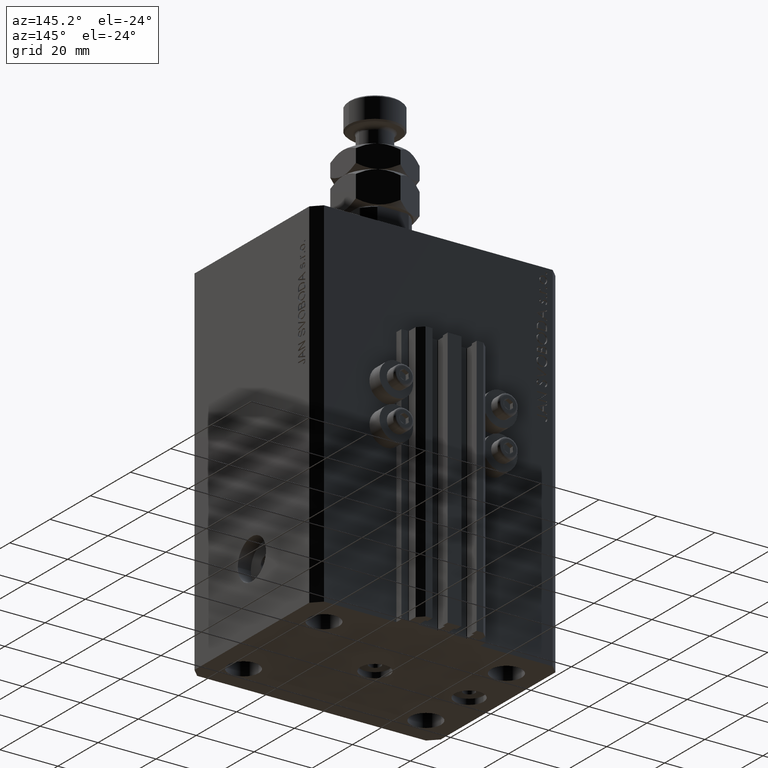
[diagram: clean part render]
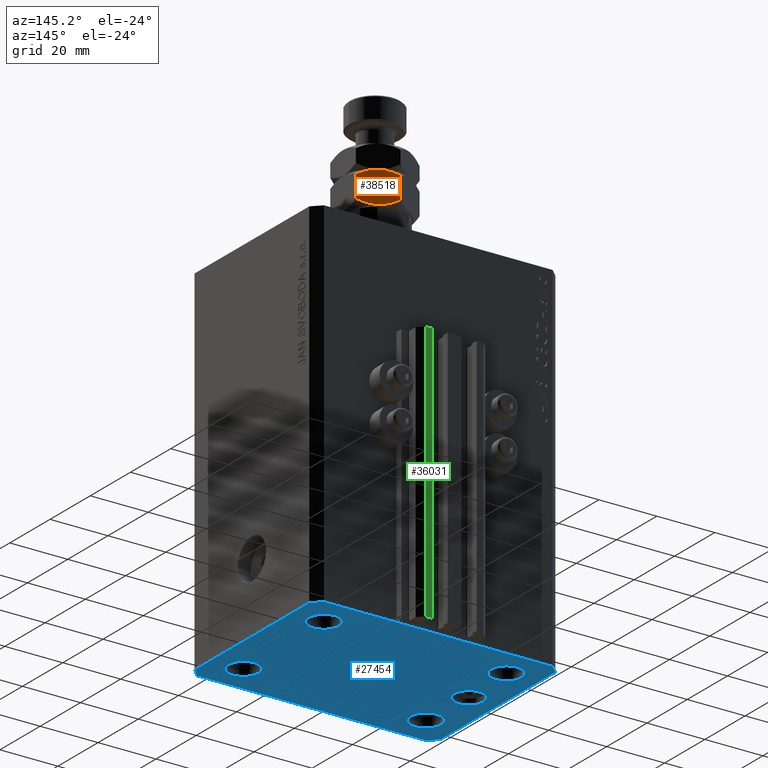
[diagram: same view with three faces highlighted in distinct colors, each labeled with its STEP entity id]
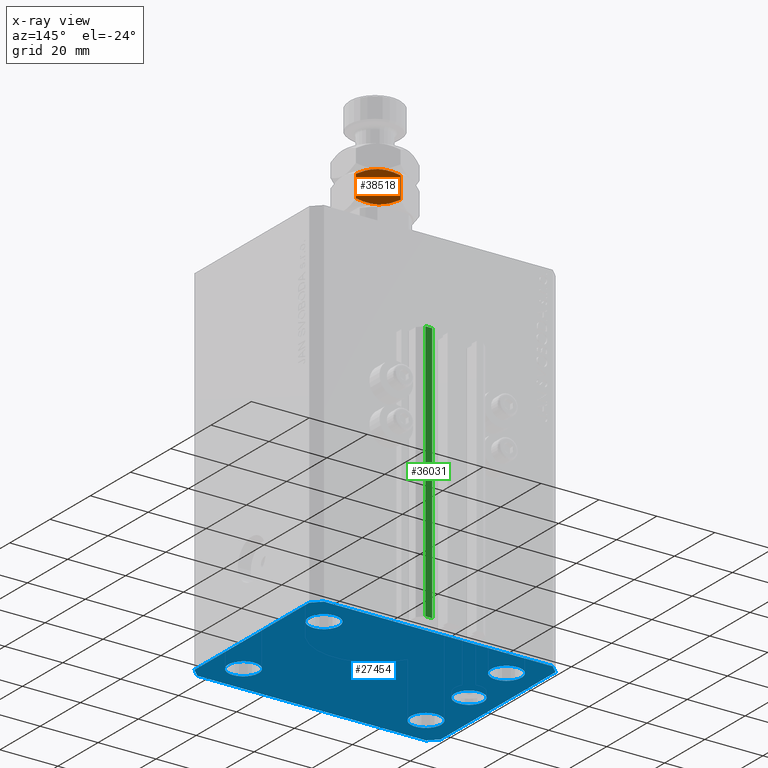
[diagram: x-ray of the same camera — body ghosted, the three highlighted faces saturated]
A machine part, auxiliary view with three faces highlighted in distinct colors.
The next image is the same camera in x-ray (body ghosted, the three faces saturated) — at least one of them is partly hidden behind the body in this view.
Their STEP definitions:

[orange] entity #38518 — the highlighted planar face has unit normal (-0.5, -0.866, 0).
#659 = DIRECTION ( 'NONE',  ( -0.000000000000000000, -0.000000000000000000, -1.000000000000000000 ) ) ;
#4475 = CARTESIAN_POINT ( 'NONE',  ( 7.884967580346613936, 8.149317767107177701, 10.67178078790959717 ) ) ;
#4561 = EDGE_CURVE ( 'NONE', #41747, #34154, #22808, .T. ) ;
#4966 = CARTESIAN_POINT ( 'NONE',  ( 6.470625887979895019, 8.965888323921213043, 10.95634070256487824 ) ) ;
#5756 = LINE ( 'NONE', #9965, #40472 ) ;
#5987 = DIRECTION ( 'NONE',  ( -0.000000000000000000, -0.000000000000000000, -1.000000000000000000 ) ) ;
#6408 = CARTESIAN_POINT ( 'NONE',  ( 11.00000000000000000, 6.350852961085883486, 9.298294077828240134 ) ) ;
#6427 = CARTESIAN_POINT ( 'NONE',  ( 5.499999999999999112, 9.526279441628826561, 0.000000000000000000 ) ) ;
#6844 = CARTESIAN_POINT ( 'NONE',  ( 5.499999999999999112, 9.526279441628826561, 0.000000000000000000 ) ) ;
#7356 = CARTESIAN_POINT ( 'NONE',  ( 11.00000000000000000, 6.350852961085883486, 1.701705922171761198 ) ) ;
#8689 = CARTESIAN_POINT ( 'NONE',  ( 7.420105971005182433, 8.417705742396377033, 10.79187792513293154 ) ) ;
#9397 = PLANE ( 'NONE',  #12714 ) ;
#9965 = CARTESIAN_POINT ( 'NONE',  ( 11.00000000000000000, 6.350852961085883486, 11.00000000000000000 ) ) ;
#10100 = ORIENTED_EDGE ( 'NONE', *, *, #45185, .T. ) ;
#10112 = ORIENTED_EDGE ( 'NONE', *, *, #14779, .F. ) ;
#10156 = B_SPLINE_CURVE_WITH_KNOTS ( 'NONE', 3,
 ( #20081, #12400, #20320, #4475, #8689, #4966, #12168, #23793 ),
 .UNSPECIFIED., .F., .F.,
 ( 4, 2, 2, 4 ),
 ( 2.544311317614349830E-07, 0.003291871675740032106, 0.004937680298044164716, 0.006583488920348298627 ),
 .UNSPECIFIED. ) ;
#10562 = ORIENTED_EDGE ( 'NONE', *, *, #4561, .F. ) ;
#11064 = CARTESIAN_POINT ( 'NONE',  ( 6.456670474420574735, 8.973945485696338764, -1.192622389734053694E-15 ) ) ;
#11422 = EDGE_LOOP ( 'NONE', ( #21593, #39842, #10562, #18718, #10100, #10112 ) ) ;
#12101 = CARTESIAN_POINT ( 'NONE',  ( 1.748214531935807559, 11.69237379155741152, 10.22231519547797518 ) ) ;
#12168 = CARTESIAN_POINT ( 'NONE',  ( 5.981709287746640236, 9.248164454677155533, 11.00000000000000000 ) ) ;
#12400 = CARTESIAN_POINT ( 'NONE',  ( 10.13752086928278295, 6.848805519375901874, 9.796246636118256745 ) ) ;
#12714 = AXIS2_PLACEMENT_3D ( 'NONE', #34505, #39862, #17051 ) ;
#14275 = CARTESIAN_POINT ( 'NONE',  ( 7.397073880711847238, 8.431003325927232339, 0.1689086083647579339 ) ) ;
#14779 = EDGE_CURVE ( 'NONE', #17540, #24611, #39261, .T. ) ;
#17051 = DIRECTION ( 'NONE',  ( 0.8660254037844387076, -0.4999999999999998890, 0.000000000000000000 ) ) ;
#17070 = CARTESIAN_POINT ( 'NONE',  ( 3.579894028994819788, 10.63485314086127431, 0.2081220748670722098 ) ) ;
#17316 = CARTESIAN_POINT ( 'NONE',  ( 1.744478007639208350, 11.69453107486588195, 0.7806233875467714078 ) ) ;
#17433 = CARTESIAN_POINT ( 'NONE',  ( 9.006588997586899406E-16, 12.70170592217176342, 1.701705922171758312 ) ) ;
#17540 = VERTEX_POINT ( 'NONE', #25797 ) ;
#17896 = VERTEX_POINT ( 'NONE', #6408 ) ;
#18718 = ORIENTED_EDGE ( 'NONE', *, *, #25507, .F. ) ;
#18973 = CARTESIAN_POINT ( 'NONE',  ( 10.13851939750335696, 6.848229018838962290, 1.204329864418605567 ) ) ;
#20081 = CARTESIAN_POINT ( 'NONE',  ( 11.00000000000000000, 6.350852961085883486, 9.298294077828240134 ) ) ;
#20320 = CARTESIAN_POINT ( 'NONE',  ( 9.255521992360790762, 7.358027808391762292, 10.21937661245322460 ) ) ;
#21294 = CARTESIAN_POINT ( 'NONE',  ( 5.018290712253357100, 9.804394428580492260, -1.345088320239828938E-15 ) ) ;
#21593 = ORIENTED_EDGE ( 'NONE', *, *, #24442, .F. ) ;
#22808 = B_SPLINE_CURVE_WITH_KNOTS ( 'NONE', 3,
 ( #43291, #42545, #23721, #12101, #34893, #27203 ),
 .UNSPECIFIED., .F., .F.,
 ( 4, 2, 4 ),
 ( 0.006583488920348298627, 0.009852050593448711396, 0.01312061226654912156 ),
 .UNSPECIFIED. ) ;
#23721 = CARTESIAN_POINT ( 'NONE',  ( 3.602926119288152318, 10.62155555733041901, 10.83109139163524581 ) ) ;
#23793 = CARTESIAN_POINT ( 'NONE',  ( 5.499999999999998224, 9.526279441628819455, 11.00000000000000000 ) ) ;
#24442 = EDGE_CURVE ( 'NONE', #44867, #17540, #40957, .T. ) ;
#24611 = VERTEX_POINT ( 'NONE', #33696 ) ;
#25256 = CARTESIAN_POINT ( 'NONE',  ( 4.529374112020105869, 10.08667055933643830, 0.04365929743512447087 ) ) ;
#25507 = EDGE_CURVE ( 'NONE', #17896, #41747, #10156, .T. ) ;
#25797 = CARTESIAN_POINT ( 'NONE',  ( 5.499999999999999112, 9.526279441628826561, 0.000000000000000000 ) ) ;
#26177 = CARTESIAN_POINT ( 'NONE',  ( 9.251785468064189999, 7.360185091700237159, 0.7776848045220270400 ) ) ;
#27065 = FACE_OUTER_BOUND ( 'NONE', #11422, .T. ) ;
#27203 = CARTESIAN_POINT ( 'NONE',  ( -4.327962126576701651E-16, 12.70170592217176342, 9.298294077828241910 ) ) ;
#27419 = CARTESIAN_POINT ( 'NONE',  ( 0.000000000000000000, 12.70170592217176342, 11.00000000000000000 ) ) ;
#28278 = CARTESIAN_POINT ( 'NONE',  ( -4.327962126576701651E-16, 12.70170592217176342, 9.298294077828241910 ) ) ;
#28492 = CARTESIAN_POINT ( 'NONE',  ( 0.8624791307172143817, 12.20375336388174503, 1.203753363881742811 ) ) ;
#33696 = CARTESIAN_POINT ( 'NONE',  ( 11.00000000000000000, 6.350852961085883486, 1.701705922171761198 ) ) ;
#34154 = VERTEX_POINT ( 'NONE', #28278 ) ;
#34505 = CARTESIAN_POINT ( 'NONE',  ( 11.00000000000000000, 6.350852961085883486, 11.00000000000000000 ) ) ;
#34668 = EDGE_CURVE ( 'NONE', #34154, #44867, #42524, .T. ) ;
#34893 = CARTESIAN_POINT ( 'NONE',  ( 0.8614806024966432663, 12.20432986441868728, 9.795670135581396210 ) ) ;
#35942 = CARTESIAN_POINT ( 'NONE',  ( 3.115032419653387397, 10.90324111615047364, 0.3282192120904029453 ) ) ;
#38518 = ADVANCED_FACE ( 'NONE', ( #27065 ), #9397, .F. ) ;
#39261 = B_SPLINE_CURVE_WITH_KNOTS ( 'NONE', 3,
 ( #6844, #11064, #14275, #26177, #18973, #7356 ),
 .UNSPECIFIED., .F., .F.,
 ( 4, 2, 4 ),
 ( 0.006583488920348296025, 0.009852050593448707927, 0.01312061226654912330 ),
 .UNSPECIFIED. ) ;
#39389 = CARTESIAN_POINT ( 'NONE',  ( 9.006588997586899406E-16, 12.70170592217176342, 1.701705922171758312 ) ) ;
#39842 = ORIENTED_EDGE ( 'NONE', *, *, #34668, .F. ) ;
#39862 = DIRECTION ( 'NONE',  ( -0.4999999999999998890, -0.8660254037844387076, 0.000000000000000000 ) ) ;
#40472 = VECTOR ( 'NONE', #5987, 1000.000000000000000 ) ;
#40957 = B_SPLINE_CURVE_WITH_KNOTS ( 'NONE', 3,
 ( #39389, #28492, #17316, #35942, #17070, #25256, #21294, #6427 ),
 .UNSPECIFIED., .F., .F.,
 ( 4, 2, 2, 4 ),
 ( 2.544311317623912303E-07, 0.003291871675740029504, 0.004937680298044162114, 0.006583488920348296025 ),
 .UNSPECIFIED. ) ;
#41747 = VERTEX_POINT ( 'NONE', #46822 ) ;
#42524 = LINE ( 'NONE', #27419, #45777 ) ;
#42545 = CARTESIAN_POINT ( 'NONE',  ( 4.543329525579426154, 10.07861339756131080, 11.00000000000000000 ) ) ;
#43291 = CARTESIAN_POINT ( 'NONE',  ( 5.499999999999998224, 9.526279441628819455, 11.00000000000000000 ) ) ;
#44867 = VERTEX_POINT ( 'NONE', #17433 ) ;
#45185 = EDGE_CURVE ( 'NONE', #17896, #24611, #5756, .T. ) ;
#45777 = VECTOR ( 'NONE', #659, 1000.000000000000000 ) ;
#46822 = CARTESIAN_POINT ( 'NONE',  ( 5.499999999999998224, 9.526279441628819455, 11.00000000000000000 ) ) ;

[blue] entity #27454 — the highlighted planar face has unit normal (0, 0, 1).
#539 = EDGE_CURVE ( 'NONE', #33734, #5957, #21861, .T. ) ;
#709 = CARTESIAN_POINT ( 'NONE',  ( -5.000000000000000000, 0.000000000000000000, -123.0000000000000000 ) ) ;
#834 = ORIENTED_EDGE ( 'NONE', *, *, #8948, .F. ) ;
#1358 = EDGE_CURVE ( 'NONE', #43691, #28724, #20327, .T. ) ;
#1410 = EDGE_CURVE ( 'NONE', #14986, #15946, #34752, .T. ) ;
#1440 = CARTESIAN_POINT ( 'NONE',  ( 42.50000000000051870, 28.49999999999995381, -123.0000000000000000 ) ) ;
#1778 = CARTESIAN_POINT ( 'NONE',  ( 31.50000000000000000, 19.99999999999999289, -123.0000000000000000 ) ) ;
#1968 = DIRECTION ( 'NONE',  ( -0.000000000000000000, -0.000000000000000000, -1.000000000000000000 ) ) ;
#2054 = VERTEX_POINT ( 'NONE', #37348 ) ;
#2195 = FACE_BOUND ( 'NONE', #6155, .T. ) ;
#2229 = VERTEX_POINT ( 'NONE', #43942 ) ;
#2331 = DIRECTION ( 'NONE',  ( -0.000000000000000000, -0.000000000000000000, -1.000000000000000000 ) ) ;
#2415 = VECTOR ( 'NONE', #4391, 1000.000000000000000 ) ;
#2852 = CARTESIAN_POINT ( 'NONE',  ( -39.50000000000000711, 31.50000000000000000, -123.0000000000000000 ) ) ;
#2895 = EDGE_LOOP ( 'NONE', ( #36712, #18232 ) ) ;
#3909 = LINE ( 'NONE', #18556, #2415 ) ;
#4390 = CARTESIAN_POINT ( 'NONE',  ( 26.25000000000000355, 19.99999999999999289, -123.0000000000000000 ) ) ;
#4391 = DIRECTION ( 'NONE',  ( 1.000000000000000000, 0.000000000000000000, 0.000000000000000000 ) ) ;
#4588 = DIRECTION ( 'NONE',  ( 1.000000000000000000, 0.000000000000000000, 0.000000000000000000 ) ) ;
#4880 = AXIS2_PLACEMENT_3D ( 'NONE', #38730, #35032, #9011 ) ;
#5095 = DIRECTION ( 'NONE',  ( 0.7071067811865483499, 0.7071067811865466846, 0.000000000000000000 ) ) ;
#5268 = CARTESIAN_POINT ( 'NONE',  ( -39.50000000000000711, 31.50000000000000000, -123.0000000000000000 ) ) ;
#5538 = ORIENTED_EDGE ( 'NONE', *, *, #12921, .F. ) ;
#5656 = VECTOR ( 'NONE', #5095, 1000.000000000000000 ) ;
#5682 = FACE_BOUND ( 'NONE', #26221, .T. ) ;
#5957 = VERTEX_POINT ( 'NONE', #46230 ) ;
#6017 = EDGE_CURVE ( 'NONE', #13953, #2054, #16496, .T. ) ;
#6147 = EDGE_LOOP ( 'NONE', ( #25072, #46629 ) ) ;
#6155 = EDGE_LOOP ( 'NONE', ( #14158, #15147 ) ) ;
#6487 = AXIS2_PLACEMENT_3D ( 'NONE', #28753, #1968, #42669 ) ;
#7426 = DIRECTION ( 'NONE',  ( -1.000000000000000000, 0.000000000000000000, 0.000000000000000000 ) ) ;
#7661 = DIRECTION ( 'NONE',  ( 0.000000000000000000, 0.000000000000000000, -1.000000000000000000 ) ) ;
#8948 = EDGE_CURVE ( 'NONE', #33057, #10484, #18864, .T. ) ;
#9011 = DIRECTION ( 'NONE',  ( 1.000000000000000000, 0.000000000000000000, 0.000000000000000000 ) ) ;
#9197 = AXIS2_PLACEMENT_3D ( 'NONE', #24563, #17859, #25050 ) ;
#9223 = EDGE_CURVE ( 'NONE', #12750, #37065, #31627, .T. ) ;
#9505 = EDGE_CURVE ( 'NONE', #2054, #13953, #38806, .T. ) ;
#9808 = DIRECTION ( 'NONE',  ( 1.000000000000000000, 0.000000000000000000, 0.000000000000000000 ) ) ;
#10484 = VERTEX_POINT ( 'NONE', #36799 ) ;
#10539 = CIRCLE ( 'NONE', #32685, 5.250000000000000888 ) ;
#10545 = EDGE_CURVE ( 'NONE', #2229, #25896, #43577, .T. ) ;
#10755 = CARTESIAN_POINT ( 'NONE',  ( -36.74999999999999289, -20.00000000000000355, -123.0000000000000000 ) ) ;
#11177 = AXIS2_PLACEMENT_3D ( 'NONE', #15739, #41771, #4588 ) ;
#11436 = DIRECTION ( 'NONE',  ( -1.000000000000000000, 0.000000000000000000, 0.000000000000000000 ) ) ;
#12206 = CARTESIAN_POINT ( 'NONE',  ( -42.50000000000000000, 28.50000000000000000, -123.0000000000000000 ) ) ;
#12463 = CARTESIAN_POINT ( 'NONE',  ( 36.74999999999999289, -20.00000000000000355, -123.0000000000000000 ) ) ;
#12480 = CARTESIAN_POINT ( 'NONE',  ( 42.50000000000000711, -28.50000000000000355, -123.0000000000000000 ) ) ;
#12750 = VERTEX_POINT ( 'NONE', #41782 ) ;
#12835 = CARTESIAN_POINT ( 'NONE',  ( -26.25000000000000000, 19.99999999999999645, -123.0000000000000000 ) ) ;
#12840 = CIRCLE ( 'NONE', #46862, 4.999999999999997335 ) ;
#12880 = CARTESIAN_POINT ( 'NONE',  ( -42.50000000000000000, 28.50000000000000000, -123.0000000000000000 ) ) ;
#12921 = EDGE_CURVE ( 'NONE', #31690, #33057, #23939, .T. ) ;
#13358 = DIRECTION ( 'NONE',  ( 1.000000000000000000, 0.000000000000000000, -0.000000000000000000 ) ) ;
#13574 = ORIENTED_EDGE ( 'NONE', *, *, #26942, .F. ) ;
#13953 = VERTEX_POINT ( 'NONE', #10755 ) ;
#14158 = ORIENTED_EDGE ( 'NONE', *, *, #22144, .F. ) ;
#14725 = DIRECTION ( 'NONE',  ( 1.000000000000000000, 0.000000000000000000, 0.000000000000000000 ) ) ;
#14986 = VERTEX_POINT ( 'NONE', #12880 ) ;
#15147 = ORIENTED_EDGE ( 'NONE', *, *, #23150, .F. ) ;
#15226 = VECTOR ( 'NONE', #11436, 1000.000000000000000 ) ;
#15739 = CARTESIAN_POINT ( 'NONE',  ( 31.50000000000000000, 19.99999999999999289, -123.0000000000000000 ) ) ;
#15946 = VERTEX_POINT ( 'NONE', #28468 ) ;
#15959 = VERTEX_POINT ( 'NONE', #36659 ) ;
#16253 = VERTEX_POINT ( 'NONE', #2852 ) ;
#16496 = CIRCLE ( 'NONE', #23658, 5.250000000000000888 ) ;
#16731 = ORIENTED_EDGE ( 'NONE', *, *, #38622, .F. ) ;
#17366 = EDGE_CURVE ( 'NONE', #15946, #15959, #40959, .T. ) ;
#17565 = PLANE ( 'NONE',  #25522 ) ;
#17702 = CARTESIAN_POINT ( 'NONE',  ( -31.50000000000000000, 19.99999999999999645, -123.0000000000000000 ) ) ;
#17859 = DIRECTION ( 'NONE',  ( 0.000000000000000000, 0.000000000000000000, -1.000000000000000000 ) ) ;
#18232 = ORIENTED_EDGE ( 'NONE', *, *, #10545, .F. ) ;
#18444 = EDGE_CURVE ( 'NONE', #5957, #33734, #12840, .T. ) ;
#18556 = CARTESIAN_POINT ( 'NONE',  ( -39.50000000000000711, -31.50000000000000000, -123.0000000000000000 ) ) ;
#18634 = CARTESIAN_POINT ( 'NONE',  ( -31.49999999999999289, -20.00000000000000355, -123.0000000000000000 ) ) ;
#18811 = CARTESIAN_POINT ( 'NONE',  ( 0.000000000000000000, 0.000000000000000000, -123.0000000000000000 ) ) ;
#18864 = LINE ( 'NONE', #19818, #44295 ) ;
#19347 = LINE ( 'NONE', #22346, #15226 ) ;
#19351 = DIRECTION ( 'NONE',  ( 8.886653596232072440E-15, 1.000000000000000000, 0.000000000000000000 ) ) ;
#19818 = CARTESIAN_POINT ( 'NONE',  ( 42.50000000000000711, -28.50000000000000355, -123.0000000000000000 ) ) ;
#19941 = CARTESIAN_POINT ( 'NONE',  ( -32.50000000000000000, 0.000000000000000000, -123.0000000000000000 ) ) ;
#20120 = DIRECTION ( 'NONE',  ( -0.000000000000000000, -0.000000000000000000, -1.000000000000000000 ) ) ;
#20327 = CIRCLE ( 'NONE', #26670, 5.249999999999997335 ) ;
#20529 = EDGE_LOOP ( 'NONE', ( #13574, #46201 ) ) ;
#20545 = EDGE_CURVE ( 'NONE', #28724, #43691, #30936, .T. ) ;
#20794 = DIRECTION ( 'NONE',  ( -0.7071067811865356934, 0.7071067811865594521, 0.000000000000000000 ) ) ;
#20806 = FACE_BOUND ( 'NONE', #2895, .T. ) ;
#21143 = CARTESIAN_POINT ( 'NONE',  ( 39.50000000000000711, -31.50000000000000000, -123.0000000000000000 ) ) ;
#21444 = DIRECTION ( 'NONE',  ( 0.000000000000000000, 0.000000000000000000, -1.000000000000000000 ) ) ;
#21786 = FACE_BOUND ( 'NONE', #6147, .T. ) ;
#21861 = CIRCLE ( 'NONE', #9197, 4.999999999999997335 ) ;
#22144 = EDGE_CURVE ( 'NONE', #24943, #48519, #33392, .T. ) ;
#22346 = CARTESIAN_POINT ( 'NONE',  ( 39.50000000000056843, 31.50000000000000000, -123.0000000000000000 ) ) ;
#22448 = ORIENTED_EDGE ( 'NONE', *, *, #27280, .F. ) ;
#23150 = EDGE_CURVE ( 'NONE', #48519, #24943, #35787, .T. ) ;
#23610 = LINE ( 'NONE', #5268, #27920 ) ;
#23658 = AXIS2_PLACEMENT_3D ( 'NONE', #24663, #39776, #9808 ) ;
#23939 = LINE ( 'NONE', #39054, #5656 ) ;
#24563 = CARTESIAN_POINT ( 'NONE',  ( -32.50000000000000000, 0.000000000000000000, -123.0000000000000000 ) ) ;
#24663 = CARTESIAN_POINT ( 'NONE',  ( -31.49999999999999289, -20.00000000000000355, -123.0000000000000000 ) ) ;
#24773 = EDGE_CURVE ( 'NONE', #25896, #2229, #10539, .T. ) ;
#24943 = VERTEX_POINT ( 'NONE', #12463 ) ;
#25036 = EDGE_CURVE ( 'NONE', #16253, #14986, #23610, .T. ) ;
#25050 = DIRECTION ( 'NONE',  ( -1.000000000000000000, 0.000000000000000000, 0.000000000000000000 ) ) ;
#25072 = ORIENTED_EDGE ( 'NONE', *, *, #539, .F. ) ;
#25522 = AXIS2_PLACEMENT_3D ( 'NONE', #35933, #40107, #13358 ) ;
#25896 = VERTEX_POINT ( 'NONE', #12835 ) ;
#26040 = ORIENTED_EDGE ( 'NONE', *, *, #20545, .F. ) ;
#26221 = EDGE_LOOP ( 'NONE', ( #26040, #48031 ) ) ;
#26326 = DIRECTION ( 'NONE',  ( 1.000000000000000000, 0.000000000000000000, 0.000000000000000000 ) ) ;
#26670 = AXIS2_PLACEMENT_3D ( 'NONE', #1778, #20120, #42185 ) ;
#26867 = EDGE_LOOP ( 'NONE', ( #22448, #33235, #834, #5538, #16731, #31447, #33428, #43951 ) ) ;
#26942 = EDGE_CURVE ( 'NONE', #37065, #12750, #45295, .T. ) ;
#27093 = DIRECTION ( 'NONE',  ( -0.000000000000000000, -0.000000000000000000, -1.000000000000000000 ) ) ;
#27280 = EDGE_CURVE ( 'NONE', #33650, #16253, #19347, .T. ) ;
#27454 = ADVANCED_FACE ( 'NONE', ( #36168, #21786, #40350, #2195, #5682, #20806, #32452 ), #17565, .F. ) ;
#27616 = DIRECTION ( 'NONE',  ( -1.000000000000000000, 0.000000000000000000, 0.000000000000000000 ) ) ;
#27700 = AXIS2_PLACEMENT_3D ( 'NONE', #18634, #29800, #26326 ) ;
#27920 = VECTOR ( 'NONE', #46899, 1000.000000000000000 ) ;
#28468 = CARTESIAN_POINT ( 'NONE',  ( -42.50000000000000000, -28.50000000000000000, -123.0000000000000000 ) ) ;
#28724 = VERTEX_POINT ( 'NONE', #41544 ) ;
#28753 = CARTESIAN_POINT ( 'NONE',  ( 31.49999999999999289, -20.00000000000000355, -123.0000000000000000 ) ) ;
#29463 = CARTESIAN_POINT ( 'NONE',  ( -37.50000000000000000, 0.000000000000000000, -123.0000000000000000 ) ) ;
#29800 = DIRECTION ( 'NONE',  ( -0.000000000000000000, -0.000000000000000000, -1.000000000000000000 ) ) ;
#30198 = CARTESIAN_POINT ( 'NONE',  ( 39.50000000000056843, 31.50000000000000000, -123.0000000000000000 ) ) ;
#30936 = CIRCLE ( 'NONE', #11177, 5.249999999999997335 ) ;
#31447 = ORIENTED_EDGE ( 'NONE', *, *, #17366, .F. ) ;
#31627 = CIRCLE ( 'NONE', #33232, 5.000000000000000000 ) ;
#31690 = VERTEX_POINT ( 'NONE', #21143 ) ;
#31811 = AXIS2_PLACEMENT_3D ( 'NONE', #40017, #21444, #44230 ) ;
#32338 = DIRECTION ( 'NONE',  ( 1.000000000000000000, 0.000000000000000000, 0.000000000000000000 ) ) ;
#32452 = FACE_OUTER_BOUND ( 'NONE', #26867, .T. ) ;
#32685 = AXIS2_PLACEMENT_3D ( 'NONE', #45447, #27093, #14725 ) ;
#32818 = CARTESIAN_POINT ( 'NONE',  ( -42.50000000000000000, -28.50000000000000000, -123.0000000000000000 ) ) ;
#33057 = VERTEX_POINT ( 'NONE', #12480 ) ;
#33105 = ORIENTED_EDGE ( 'NONE', *, *, #9505, .F. ) ;
#33232 = AXIS2_PLACEMENT_3D ( 'NONE', #18811, #7661, #7426 ) ;
#33235 = ORIENTED_EDGE ( 'NONE', *, *, #43480, .F. ) ;
#33392 = CIRCLE ( 'NONE', #6487, 5.249999999999997335 ) ;
#33428 = ORIENTED_EDGE ( 'NONE', *, *, #1410, .F. ) ;
#33650 = VERTEX_POINT ( 'NONE', #30198 ) ;
#33734 = VERTEX_POINT ( 'NONE', #29463 ) ;
#34752 = LINE ( 'NONE', #12206, #43994 ) ;
#35032 = DIRECTION ( 'NONE',  ( -0.000000000000000000, -0.000000000000000000, -1.000000000000000000 ) ) ;
#35657 = EDGE_LOOP ( 'NONE', ( #33105, #38636 ) ) ;
#35787 = CIRCLE ( 'NONE', #4880, 5.249999999999997335 ) ;
#35933 = CARTESIAN_POINT ( 'NONE',  ( 0.000000000000000000, 0.000000000000000000, -123.0000000000000000 ) ) ;
#36168 = FACE_BOUND ( 'NONE', #20529, .T. ) ;
#36486 = AXIS2_PLACEMENT_3D ( 'NONE', #17702, #2331, #32338 ) ;
#36659 = CARTESIAN_POINT ( 'NONE',  ( -39.50000000000000711, -31.50000000000000000, -123.0000000000000000 ) ) ;
#36712 = ORIENTED_EDGE ( 'NONE', *, *, #24773, .F. ) ;
#36799 = CARTESIAN_POINT ( 'NONE',  ( 42.50000000000051870, 28.49999999999995381, -123.0000000000000000 ) ) ;
#36881 = CARTESIAN_POINT ( 'NONE',  ( 26.24999999999999645, -20.00000000000000355, -123.0000000000000000 ) ) ;
#37065 = VERTEX_POINT ( 'NONE', #709 ) ;
#37348 = CARTESIAN_POINT ( 'NONE',  ( -26.24999999999999289, -20.00000000000000355, -123.0000000000000000 ) ) ;
#38622 = EDGE_CURVE ( 'NONE', #15959, #31690, #3909, .T. ) ;
#38636 = ORIENTED_EDGE ( 'NONE', *, *, #6017, .F. ) ;
#38730 = CARTESIAN_POINT ( 'NONE',  ( 31.49999999999999289, -20.00000000000000355, -123.0000000000000000 ) ) ;
#38806 = CIRCLE ( 'NONE', #27700, 5.250000000000000888 ) ;
#39054 = CARTESIAN_POINT ( 'NONE',  ( 39.50000000000000711, -31.50000000000000000, -123.0000000000000000 ) ) ;
#39128 = LINE ( 'NONE', #1440, #40396 ) ;
#39776 = DIRECTION ( 'NONE',  ( -0.000000000000000000, -0.000000000000000000, -1.000000000000000000 ) ) ;
#40017 = CARTESIAN_POINT ( 'NONE',  ( 0.000000000000000000, 0.000000000000000000, -123.0000000000000000 ) ) ;
#40107 = DIRECTION ( 'NONE',  ( 0.000000000000000000, 0.000000000000000000, 1.000000000000000000 ) ) ;
#40350 = FACE_BOUND ( 'NONE', #35657, .T. ) ;
#40396 = VECTOR ( 'NONE', #20794, 1000.000000000000114 ) ;
#40959 = LINE ( 'NONE', #32818, #48432 ) ;
#41544 = CARTESIAN_POINT ( 'NONE',  ( 36.75000000000000000, 19.99999999999999289, -123.0000000000000000 ) ) ;
#41771 = DIRECTION ( 'NONE',  ( -0.000000000000000000, -0.000000000000000000, -1.000000000000000000 ) ) ;
#41782 = CARTESIAN_POINT ( 'NONE',  ( 5.000000000000000000, 6.123233995736765296E-16, -123.0000000000000000 ) ) ;
#42185 = DIRECTION ( 'NONE',  ( 1.000000000000000000, 0.000000000000000000, 0.000000000000000000 ) ) ;
#42669 = DIRECTION ( 'NONE',  ( 1.000000000000000000, 0.000000000000000000, 0.000000000000000000 ) ) ;
#43480 = EDGE_CURVE ( 'NONE', #10484, #33650, #39128, .T. ) ;
#43577 = CIRCLE ( 'NONE', #36486, 5.250000000000000888 ) ;
#43691 = VERTEX_POINT ( 'NONE', #4390 ) ;
#43942 = CARTESIAN_POINT ( 'NONE',  ( -36.75000000000000000, 19.99999999999999645, -123.0000000000000000 ) ) ;
#43951 = ORIENTED_EDGE ( 'NONE', *, *, #25036, .F. ) ;
#43994 = VECTOR ( 'NONE', #46623, 1000.000000000000000 ) ;
#44230 = DIRECTION ( 'NONE',  ( -1.000000000000000000, 0.000000000000000000, 0.000000000000000000 ) ) ;
#44295 = VECTOR ( 'NONE', #19351, 1000.000000000000000 ) ;
#45295 = CIRCLE ( 'NONE', #31811, 5.000000000000000000 ) ;
#45447 = CARTESIAN_POINT ( 'NONE',  ( -31.50000000000000000, 19.99999999999999645, -123.0000000000000000 ) ) ;
#45719 = DIRECTION ( 'NONE',  ( 0.000000000000000000, 0.000000000000000000, -1.000000000000000000 ) ) ;
#46201 = ORIENTED_EDGE ( 'NONE', *, *, #9223, .F. ) ;
#46230 = CARTESIAN_POINT ( 'NONE',  ( -27.50000000000000355, 6.123233995736762338E-16, -123.0000000000000000 ) ) ;
#46623 = DIRECTION ( 'NONE',  ( 0.000000000000000000, -1.000000000000000000, 0.000000000000000000 ) ) ;
#46629 = ORIENTED_EDGE ( 'NONE', *, *, #18444, .F. ) ;
#46862 = AXIS2_PLACEMENT_3D ( 'NONE', #19941, #45719, #27616 ) ;
#46899 = DIRECTION ( 'NONE',  ( -0.7071067811865471286, -0.7071067811865479058, 0.000000000000000000 ) ) ;
#47908 = DIRECTION ( 'NONE',  ( 0.7071067811865471286, -0.7071067811865479058, 0.000000000000000000 ) ) ;
#48031 = ORIENTED_EDGE ( 'NONE', *, *, #1358, .F. ) ;
#48432 = VECTOR ( 'NONE', #47908, 1000.000000000000000 ) ;
#48519 = VERTEX_POINT ( 'NONE', #36881 ) ;

[green] entity #36031 — the highlighted planar face has unit normal (0, 1, 0).
#1773 = DIRECTION ( 'NONE',  ( 0.000000000000000000, 0.000000000000000000, 1.000000000000000000 ) ) ;
#2723 = EDGE_CURVE ( 'NONE', #26345, #22353, #13286, .T. ) ;
#2727 = DIRECTION ( 'NONE',  ( 0.000000000000000000, 0.000000000000000000, 1.000000000000000000 ) ) ;
#2886 = VECTOR ( 'NONE', #24693, 1000.000000000000000 ) ;
#7709 = EDGE_CURVE ( 'NONE', #21410, #39363, #21089, .T. ) ;
#9586 = CARTESIAN_POINT ( 'NONE',  ( 9.999999999999998224, 39.50000000000002132, -123.0000000000000000 ) ) ;
#10922 = DIRECTION ( 'NONE',  ( 0.000000000000000000, 1.000000000000000000, -0.000000000000000000 ) ) ;
#11828 = AXIS2_PLACEMENT_3D ( 'NONE', #18597, #10922, #2727 ) ;
#13286 = LINE ( 'NONE', #9586, #2886 ) ;
#14577 = ORIENTED_EDGE ( 'NONE', *, *, #15866, .T. ) ;
#14623 = FACE_OUTER_BOUND ( 'NONE', #18146, .T. ) ;
#15866 = EDGE_CURVE ( 'NONE', #26345, #21410, #33518, .T. ) ;
#16056 = LINE ( 'NONE', #38855, #20744 ) ;
#18146 = EDGE_LOOP ( 'NONE', ( #20047, #19657, #14577, #46689 ) ) ;
#18597 = CARTESIAN_POINT ( 'NONE',  ( 9.999999999999998224, 39.50000000000002132, -123.0000000000000000 ) ) ;
#19657 = ORIENTED_EDGE ( 'NONE', *, *, #2723, .F. ) ;
#20047 = ORIENTED_EDGE ( 'NONE', *, *, #46674, .F. ) ;
#20744 = VECTOR ( 'NONE', #31192, 1000.000000000000000 ) ;
#21089 = LINE ( 'NONE', #32019, #37171 ) ;
#21410 = VERTEX_POINT ( 'NONE', #26486 ) ;
#21590 = VECTOR ( 'NONE', #44398, 1000.000000000000000 ) ;
#22353 = VERTEX_POINT ( 'NONE', #29980 ) ;
#24693 = DIRECTION ( 'NONE',  ( 0.000000000000000000, 0.000000000000000000, 1.000000000000000000 ) ) ;
#26345 = VERTEX_POINT ( 'NONE', #27278 ) ;
#26486 = CARTESIAN_POINT ( 'NONE',  ( 7.649999999999998579, 39.50000000000002132, -123.0000000000000000 ) ) ;
#27278 = CARTESIAN_POINT ( 'NONE',  ( 9.999999999999998224, 39.50000000000002132, -123.0000000000000000 ) ) ;
#29980 = CARTESIAN_POINT ( 'NONE',  ( 9.999999999999998224, 39.50000000000002132, -33.00000000000000000 ) ) ;
#31192 = DIRECTION ( 'NONE',  ( -1.000000000000000000, 0.000000000000000000, 0.000000000000000000 ) ) ;
#32019 = CARTESIAN_POINT ( 'NONE',  ( 7.649999999999998579, 39.50000000000002132, -123.0000000000000000 ) ) ;
#33518 = LINE ( 'NONE', #48610, #21590 ) ;
#36031 = ADVANCED_FACE ( 'NONE', ( #14623 ), #47834, .T. ) ;
#36223 = CARTESIAN_POINT ( 'NONE',  ( 7.649999999999998579, 39.50000000000002132, -33.00000000000000000 ) ) ;
#37171 = VECTOR ( 'NONE', #1773, 1000.000000000000000 ) ;
#38855 = CARTESIAN_POINT ( 'NONE',  ( 9.999999999999998224, 39.50000000000002132, -33.00000000000000000 ) ) ;
#39363 = VERTEX_POINT ( 'NONE', #36223 ) ;
#44398 = DIRECTION ( 'NONE',  ( -1.000000000000000000, 0.000000000000000000, 0.000000000000000000 ) ) ;
#46674 = EDGE_CURVE ( 'NONE', #22353, #39363, #16056, .T. ) ;
#46689 = ORIENTED_EDGE ( 'NONE', *, *, #7709, .T. ) ;
#47834 = PLANE ( 'NONE',  #11828 ) ;
#48610 = CARTESIAN_POINT ( 'NONE',  ( 9.999999999999998224, 39.50000000000002132, -123.0000000000000000 ) ) ;